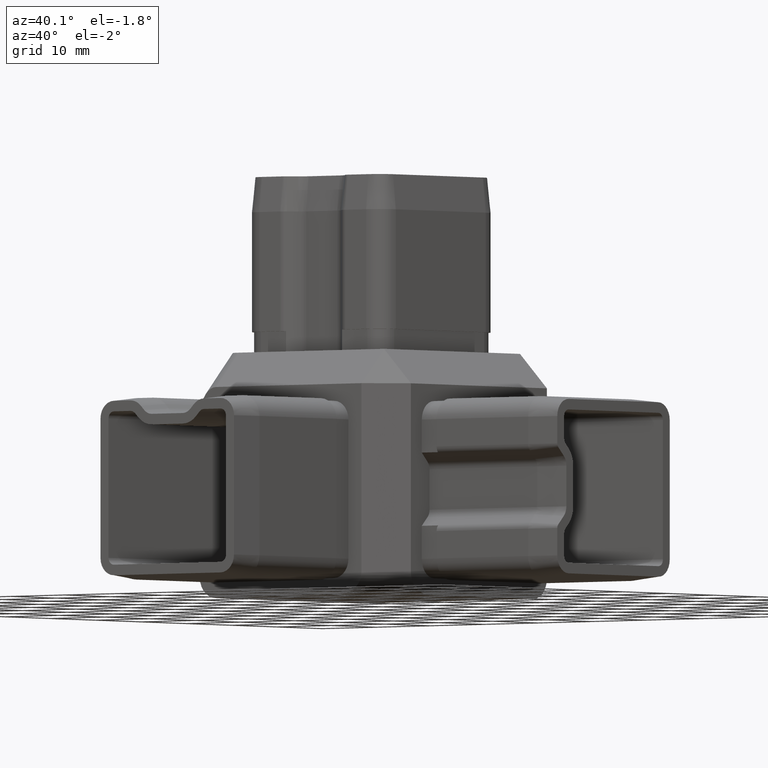
[diagram: clean part render]
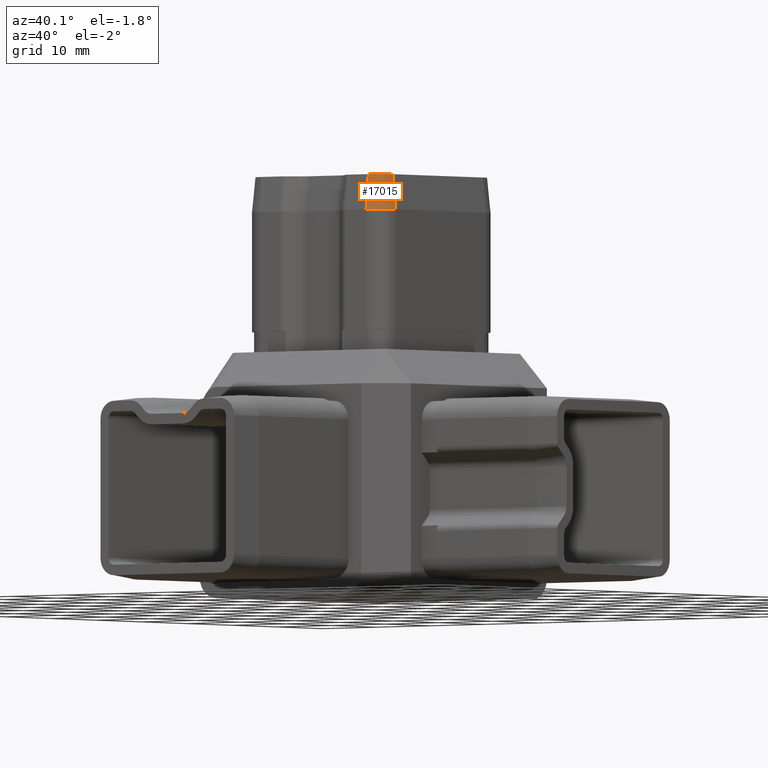
[diagram: same view with one face highlighted and labeled with its STEP entity id]
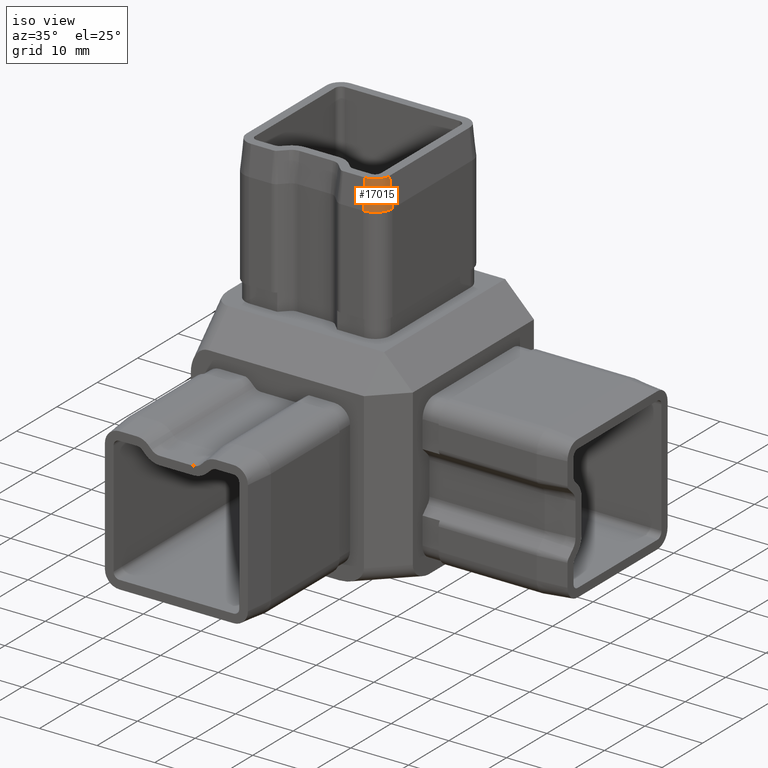
[diagram: same view with one face highlighted and labeled with its STEP entity id]
A machine part, auxiliary view. The second image highlights one B-rep face of the part: STEP entity #17015.
A second angle (iso view) of the same face is appended — the face is thin or edge-on in the first view.
In plain terms, the highlighted conical surface has half-angle 5.711 deg.
Its self-contained STEP definition (entity closure, byte-faithful):
#48 = VERTEX_POINT ( 'NONE', #613 ) ;
#587 = VERTEX_POINT ( 'NONE', #18505 ) ;
#613 = CARTESIAN_POINT ( 'NONE',  ( 10.39999999999999700, -7.400000000000003900, 37.50000000000001400 ) ) ;
#804 = CIRCLE ( 'NONE', #17029, 2.999999999999999100 ) ;
#839 = DIRECTION ( 'NONE',  ( -3.200283685694592300E-017, -0.09950371902099974800, -0.9950371902099890400 ) ) ;
#1334 = CARTESIAN_POINT ( 'NONE',  ( 9.899999999999991500, -7.400000000000003900, 42.50000000000000700 ) ) ;
#1395 = ORIENTED_EDGE ( 'NONE', *, *, #3331, .T. ) ;
#1603 = VERTEX_POINT ( 'NONE', #9711 ) ;
#1757 = CIRCLE ( 'NONE', #15832, 2.499999999999995100 ) ;
#2688 = DIRECTION ( 'NONE',  ( -0.0000000000000000000, -0.0000000000000000000, -1.000000000000000000 ) ) ;
#3331 = EDGE_CURVE ( 'NONE', #1603, #587, #1757, .T. ) ;
#3552 = CARTESIAN_POINT ( 'NONE',  ( 7.399999999999994100, -10.40000000000000200, 37.50000000000001400 ) ) ;
#3616 = FACE_OUTER_BOUND ( 'NONE', #12900, .T. ) ;
#3706 = CARTESIAN_POINT ( 'NONE',  ( 7.399999999999995000, -9.899999999999996800, 42.50000000000000700 ) ) ;
#3892 = DIRECTION ( 'NONE',  ( -0.0000000000000000000, -0.0000000000000000000, -1.000000000000000000 ) ) ;
#4153 = DIRECTION ( 'NONE',  ( -0.0000000000000000000, -0.0000000000000000000, -1.000000000000000000 ) ) ;
#4540 = CONICAL_SURFACE ( 'NONE', #7973, 2.499999999999995100, 0.09966865249116285700 ) ;
#5073 = EDGE_CURVE ( 'NONE', #48, #17754, #804, .T. ) ;
#5682 = CARTESIAN_POINT ( 'NONE',  ( 7.399999999999996800, -7.400000000000002100, 37.50000000000001400 ) ) ;
#5710 = LINE ( 'NONE', #1334, #11386 ) ;
#7199 = DIRECTION ( 'NONE',  ( 0.09950371902099974800, 6.092845550116246800E-018, -0.9950371902099890400 ) ) ;
#7746 = EDGE_CURVE ( 'NONE', #587, #17754, #13511, .T. ) ;
#7863 = ORIENTED_EDGE ( 'NONE', *, *, #7746, .T. ) ;
#7973 = AXIS2_PLACEMENT_3D ( 'NONE', #14244, #3892, #9751 ) ;
#9711 = CARTESIAN_POINT ( 'NONE',  ( 9.899999999999991500, -7.400000000000003900, 42.50000000000000700 ) ) ;
#9751 = DIRECTION ( 'NONE',  ( -1.000000000000000000, 0.0000000000000000000, 0.0000000000000000000 ) ) ;
#10055 = ORIENTED_EDGE ( 'NONE', *, *, #5073, .F. ) ;
#11386 = VECTOR ( 'NONE', #7199, 1000.000000000000200 ) ;
#12091 = EDGE_CURVE ( 'NONE', #1603, #48, #5710, .T. ) ;
#12854 = CARTESIAN_POINT ( 'NONE',  ( 7.399999999999996800, -7.400000000000002100, 42.50000000000000700 ) ) ;
#12900 = EDGE_LOOP ( 'NONE', ( #16182, #1395, #7863, #10055 ) ) ;
#13511 = LINE ( 'NONE', #3706, #14177 ) ;
#14177 = VECTOR ( 'NONE', #839, 1000.000000000000200 ) ;
#14244 = CARTESIAN_POINT ( 'NONE',  ( 7.399999999999996800, -7.400000000000002100, 42.50000000000000700 ) ) ;
#15820 = DIRECTION ( 'NONE',  ( -1.000000000000000000, 0.0000000000000000000, 0.0000000000000000000 ) ) ;
#15832 = AXIS2_PLACEMENT_3D ( 'NONE', #12854, #4153, #18672 ) ;
#16182 = ORIENTED_EDGE ( 'NONE', *, *, #12091, .F. ) ;
#17015 = ADVANCED_FACE ( 'NONE', ( #3616 ), #4540, .T. ) ;
#17029 = AXIS2_PLACEMENT_3D ( 'NONE', #5682, #2688, #15820 ) ;
#17754 = VERTEX_POINT ( 'NONE', #3552 ) ;
#18505 = CARTESIAN_POINT ( 'NONE',  ( 7.399999999999995000, -9.899999999999996800, 42.50000000000000700 ) ) ;
#18672 = DIRECTION ( 'NONE',  ( -1.000000000000000000, 0.0000000000000000000, 0.0000000000000000000 ) ) ;